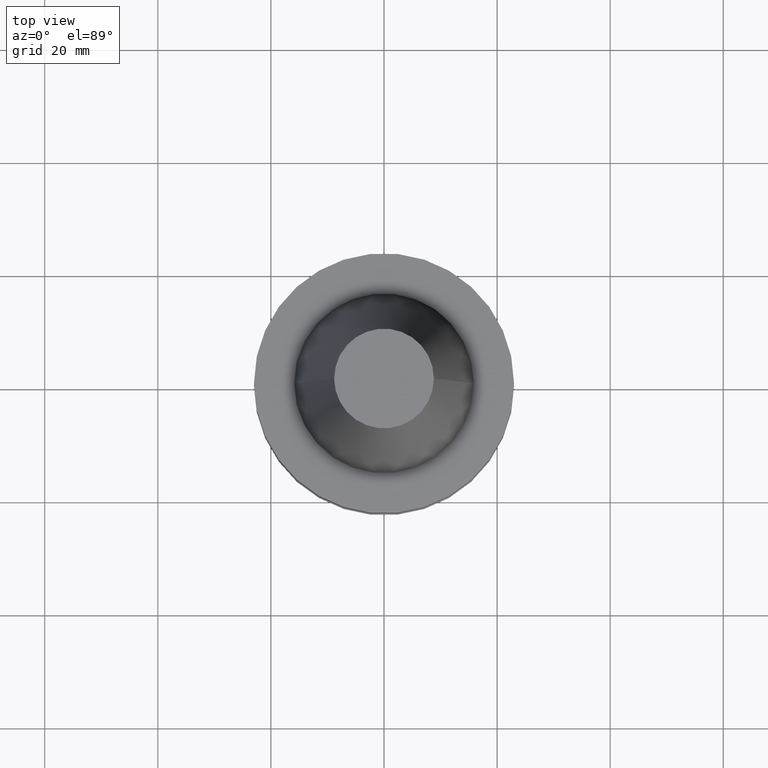
[diagram: clean part render]
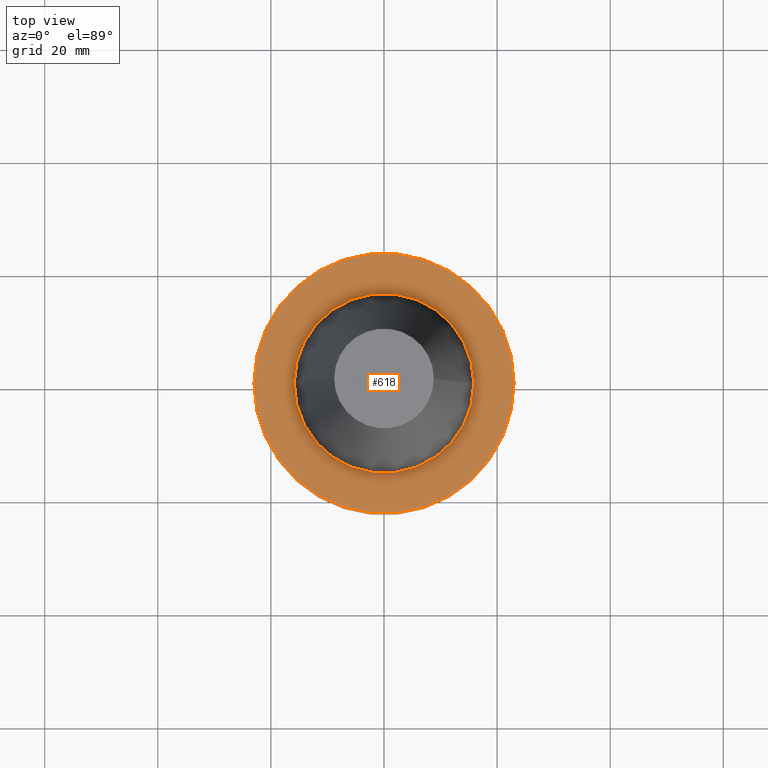
[diagram: same view with one face highlighted and labeled with its STEP entity id]
A machine part, top view. The second image highlights one B-rep face of the part: STEP entity #618.
In plain terms, the highlighted planar face has unit normal (0, 0, -1).
Its self-contained STEP definition (entity closure, byte-faithful):
#17 = DIRECTION ( 'NONE',  ( 1.000000000000000000, 0.000000000000000000, 0.000000000000000000 ) ) ;
#31 = VERTEX_POINT ( 'NONE', #607 ) ;
#63 = EDGE_CURVE ( 'NONE', #31, #707, #507, .T. ) ;
#92 = EDGE_CURVE ( 'NONE', #707, #31, #148, .T. ) ;
#104 = EDGE_LOOP ( 'NONE', ( #175, #594 ) ) ;
#148 = CIRCLE ( 'NONE', #331, 15.87500000000000000 ) ;
#162 = CARTESIAN_POINT ( 'NONE',  ( 23.00000000000000000, 0.000000000000000000, -0.5000000000000004441 ) ) ;
#165 = VERTEX_POINT ( 'NONE', #373 ) ;
#175 = ORIENTED_EDGE ( 'NONE', *, *, #92, .F. ) ;
#269 = CARTESIAN_POINT ( 'NONE',  ( 0.000000000000000000, 0.000000000000000000, -0.5000000000000004441 ) ) ;
#275 = AXIS2_PLACEMENT_3D ( 'NONE', #269, #554, #551 ) ;
#319 = CARTESIAN_POINT ( 'NONE',  ( 0.000000000000000000, 23.00000000000000000, -0.4999999999999995559 ) ) ;
#322 = FACE_OUTER_BOUND ( 'NONE', #388, .T. ) ;
#325 = CIRCLE ( 'NONE', #561, 23.00000000000000000 ) ;
#331 = AXIS2_PLACEMENT_3D ( 'NONE', #724, #742, #17 ) ;
#373 = CARTESIAN_POINT ( 'NONE',  ( -23.00000000000000000, 2.816687638038912746E-15, -0.5000000000000004441 ) ) ;
#383 = DIRECTION ( 'NONE',  ( -0.000000000000000000, -0.000000000000000000, 1.000000000000000000 ) ) ;
#388 = EDGE_LOOP ( 'NONE', ( #608, #542 ) ) ;
#412 = EDGE_CURVE ( 'NONE', #165, #754, #482, .T. ) ;
#428 = AXIS2_PLACEMENT_3D ( 'NONE', #319, #733, #431 ) ;
#431 = DIRECTION ( 'NONE',  ( -1.000000000000000000, 0.000000000000000000, -0.000000000000000000 ) ) ;
#457 = AXIS2_PLACEMENT_3D ( 'NONE', #645, #528, #766 ) ;
#482 = CIRCLE ( 'NONE', #457, 23.00000000000000000 ) ;
#494 = PLANE ( 'NONE',  #428 ) ;
#507 = CIRCLE ( 'NONE', #275, 15.87500000000000000 ) ;
#528 = DIRECTION ( 'NONE',  ( -0.000000000000000000, -0.000000000000000000, 1.000000000000000000 ) ) ;
#542 = ORIENTED_EDGE ( 'NONE', *, *, #412, .T. ) ;
#551 = DIRECTION ( 'NONE',  ( 1.000000000000000000, 0.000000000000000000, 0.000000000000000000 ) ) ;
#554 = DIRECTION ( 'NONE',  ( -0.000000000000000000, -0.000000000000000000, 1.000000000000000000 ) ) ;
#561 = AXIS2_PLACEMENT_3D ( 'NONE', #631, #383, #568 ) ;
#568 = DIRECTION ( 'NONE',  ( 1.000000000000000000, 0.000000000000000000, 0.000000000000000000 ) ) ;
#594 = ORIENTED_EDGE ( 'NONE', *, *, #63, .F. ) ;
#607 = CARTESIAN_POINT ( 'NONE',  ( -15.87500000000000000, 1.944126793646423238E-15, -0.5000000000000004441 ) ) ;
#608 = ORIENTED_EDGE ( 'NONE', *, *, #767, .T. ) ;
#610 = FACE_BOUND ( 'NONE', #104, .T. ) ;
#618 = ADVANCED_FACE ( 'NONE', ( #610, #322 ), #494, .F. ) ;
#631 = CARTESIAN_POINT ( 'NONE',  ( 0.000000000000000000, 0.000000000000000000, -0.5000000000000004441 ) ) ;
#645 = CARTESIAN_POINT ( 'NONE',  ( 0.000000000000000000, 0.000000000000000000, -0.5000000000000004441 ) ) ;
#697 = CARTESIAN_POINT ( 'NONE',  ( 15.87500000000000000, 0.000000000000000000, -0.5000000000000004441 ) ) ;
#707 = VERTEX_POINT ( 'NONE', #697 ) ;
#724 = CARTESIAN_POINT ( 'NONE',  ( 0.000000000000000000, 0.000000000000000000, -0.5000000000000004441 ) ) ;
#733 = DIRECTION ( 'NONE',  ( 0.000000000000000000, 0.000000000000000000, -1.000000000000000000 ) ) ;
#742 = DIRECTION ( 'NONE',  ( -0.000000000000000000, -0.000000000000000000, 1.000000000000000000 ) ) ;
#754 = VERTEX_POINT ( 'NONE', #162 ) ;
#766 = DIRECTION ( 'NONE',  ( 1.000000000000000000, 0.000000000000000000, 0.000000000000000000 ) ) ;
#767 = EDGE_CURVE ( 'NONE', #754, #165, #325, .T. ) ;